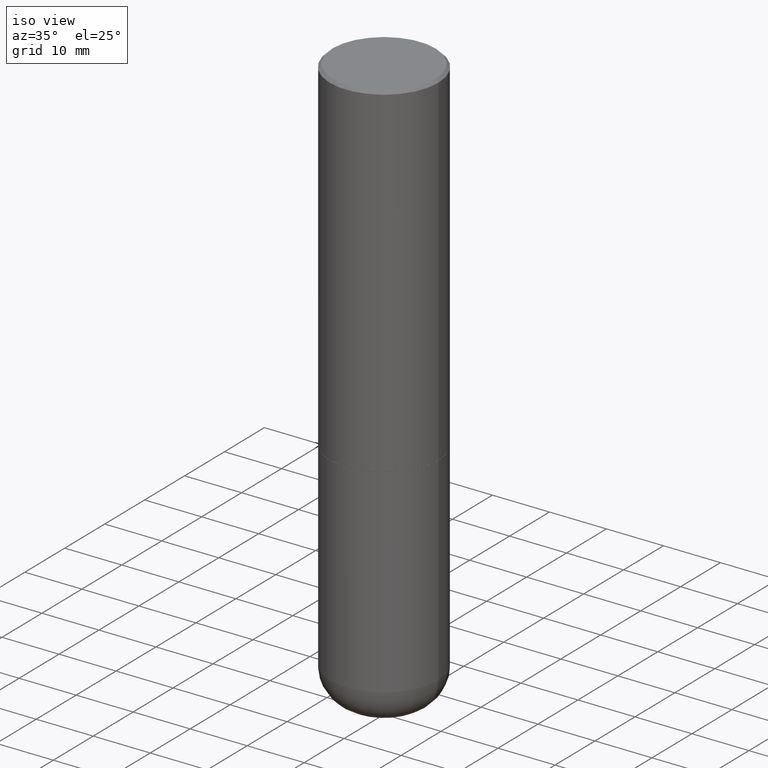
[diagram: clean part render]
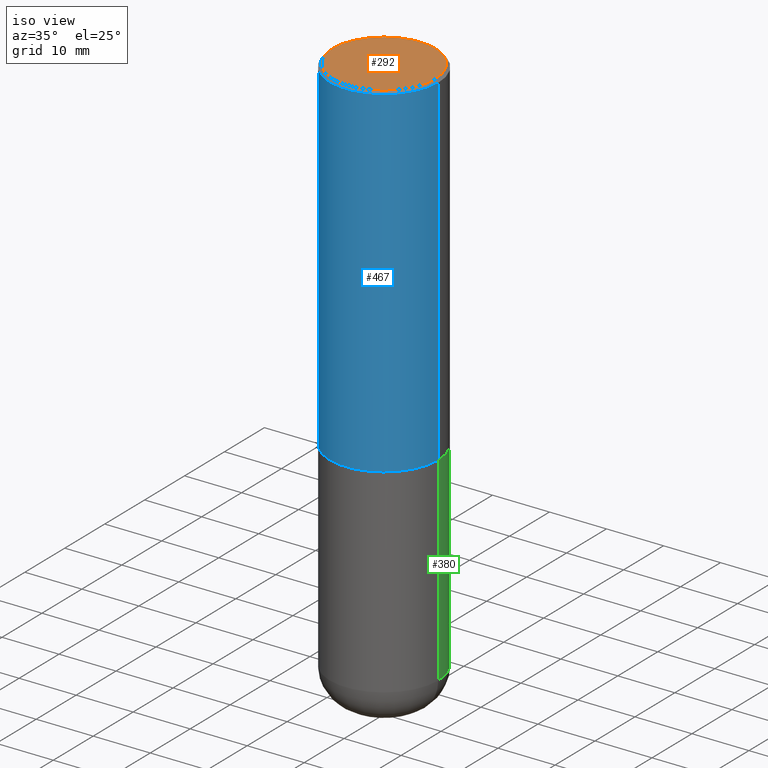
[diagram: same view with three faces highlighted in distinct colors, each labeled with its STEP entity id]
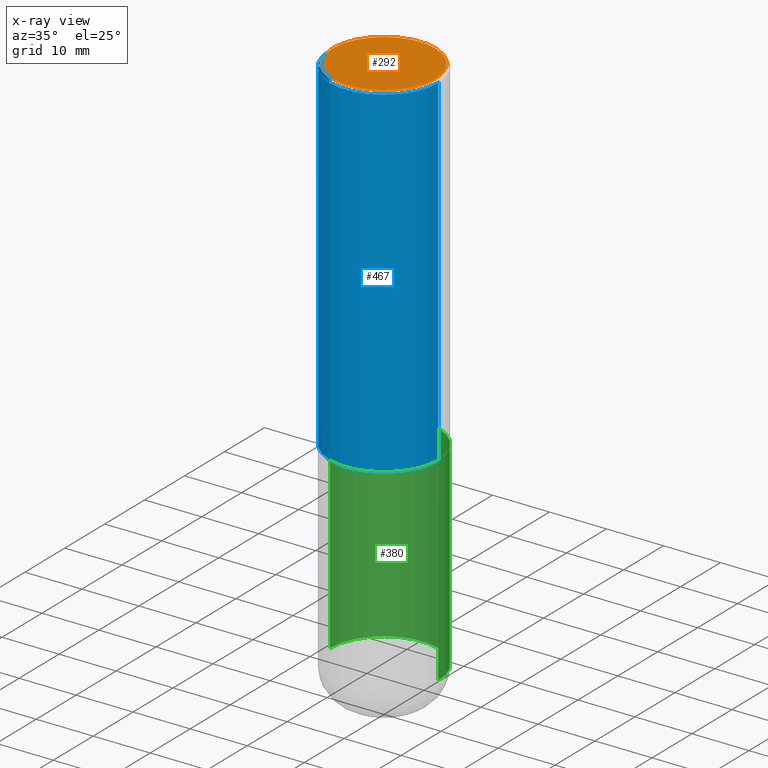
[diagram: x-ray of the same camera — body ghosted, the three highlighted faces saturated]
A machine part, iso view with three faces highlighted in distinct colors.
The next image is the same camera in x-ray (body ghosted, the three faces saturated) — at least one of them is partly hidden behind the body in this view.
Their STEP definitions:

[orange] entity #292 — the highlighted planar face has unit normal (0, -0, -1).
#22 = EDGE_CURVE ( 'NONE', #412, #43, #181, .T. ) ;
#38 = EDGE_LOOP ( 'NONE', ( #148, #105 ) ) ;
#43 = VERTEX_POINT ( 'NONE', #73 ) ;
#65 = DIRECTION ( 'NONE',  ( -2.445468806185136597E-29, 3.491481338843145583E-15, 1.000000000000000000 ) ) ;
#68 = AXIS2_PLACEMENT_3D ( 'NONE', #202, #65, #365 ) ;
#73 = CARTESIAN_POINT ( 'NONE',  ( -0.3549999999999989275, 2.513866563967048758E-15, 4.268512490082953109E-18 ) ) ;
#85 = DIRECTION ( 'NONE',  ( 1.000000000000000000, -6.982962677686266711E-15, 4.876231632512002757E-29 ) ) ;
#91 = DIRECTION ( 'NONE',  ( 2.438088387897960049E-29, -3.491481338843145188E-15, -1.000000000000000000 ) ) ;
#105 = ORIENTED_EDGE ( 'NONE', *, *, #22, .T. ) ;
#143 = AXIS2_PLACEMENT_3D ( 'NONE', #209, #91, #322 ) ;
#148 = ORIENTED_EDGE ( 'NONE', *, *, #326, .T. ) ;
#181 = CIRCLE ( 'NONE', #318, 0.3549999999999989275 ) ;
#202 = CARTESIAN_POINT ( 'NONE',  ( -1.043851414335219820E-46, 1.490343170380447200E-32, 4.268512490100411279E-18 ) ) ;
#209 = CARTESIAN_POINT ( 'NONE',  ( 2.478951750578617109E-15, 0.3549999999999989275, -1.237341619044262680E-15 ) ) ;
#276 = CARTESIAN_POINT ( 'NONE',  ( -1.043851414335219820E-46, 1.490343170380447200E-32, 4.268512490100411279E-18 ) ) ;
#292 = ADVANCED_FACE ( 'NONE', ( #440 ), #432, .F. ) ;
#318 = AXIS2_PLACEMENT_3D ( 'NONE', #276, #389, #85 ) ;
#322 = DIRECTION ( 'NONE',  ( -1.000000000000000000, 6.982962677686265922E-15, -4.876176775795935793E-29 ) ) ;
#326 = EDGE_CURVE ( 'NONE', #43, #412, #363, .T. ) ;
#342 = CARTESIAN_POINT ( 'NONE',  ( 0.3549999999999989275, -2.538996582575033948E-15, 4.268512490117958041E-18 ) ) ;
#363 = CIRCLE ( 'NONE', #68, 0.3549999999999989275 ) ;
#365 = DIRECTION ( 'NONE',  ( 1.000000000000000000, -6.982962677686266711E-15, 4.876231632512002757E-29 ) ) ;
#389 = DIRECTION ( 'NONE',  ( -2.445468806185136597E-29, 3.491481338843145583E-15, 1.000000000000000000 ) ) ;
#412 = VERTEX_POINT ( 'NONE', #342 ) ;
#432 = PLANE ( 'NONE',  #143 ) ;
#440 = FACE_OUTER_BOUND ( 'NONE', #38, .T. ) ;

[blue] entity #467 — the highlighted cylindrical surface (partial cylindrical patch) has radius 9.525 mm, axis along (-0, 0, 1).
#36 = VECTOR ( 'NONE', #252, 39.37007874015748143 ) ;
#50 = ORIENTED_EDGE ( 'NONE', *, *, #311, .F. ) ;
#56 = DIRECTION ( 'NONE',  ( -2.445468806185136877E-29, 3.491481338843145188E-15, 1.000000000000000000 ) ) ;
#64 = AXIS2_PLACEMENT_3D ( 'NONE', #388, #308, #460 ) ;
#88 = CARTESIAN_POINT ( 'NONE',  ( -0.3749999999999991673, 2.548781377355480407E-15, -0.02000000000000022246 ) ) ;
#100 = EDGE_CURVE ( 'NONE', #343, #301, #355, .T. ) ;
#124 = CARTESIAN_POINT ( 'NONE',  ( -0.3750000000000000555, -1.514767903494864183E-15, -2.373999999999999666 ) ) ;
#127 = CARTESIAN_POINT ( 'NONE',  ( -0.3749999999999995559, 2.664535259100372542E-15, -1.844600658845587356E-29 ) ) ;
#139 = DIRECTION ( 'NONE',  ( 1.000000000000000000, -6.982962677686266711E-15, 0.000000000000000000 ) ) ;
#144 = AXIS2_PLACEMENT_3D ( 'NONE', #390, #462, #423 ) ;
#147 = ORIENTED_EDGE ( 'NONE', *, *, #192, .T. ) ;
#178 = CARTESIAN_POINT ( 'NONE',  ( 4.890937612370327459E-31, -6.982962677686369262E-17, -0.02000000000000022246 ) ) ;
#192 = EDGE_CURVE ( 'NONE', #454, #301, #260, .T. ) ;
#211 = DIRECTION ( 'NONE',  ( -2.445468806185136597E-29, 3.491481338843145583E-15, 1.000000000000000000 ) ) ;
#213 = VECTOR ( 'NONE', #56, 39.37007874015748143 ) ;
#227 = CARTESIAN_POINT ( 'NONE',  ( 0.3750000000000000555, -1.090738770254597870E-14, -2.373999999999999666 ) ) ;
#252 = DIRECTION ( 'NONE',  ( -2.445468806185136877E-29, 3.491481338843145188E-15, 1.000000000000000000 ) ) ;
#260 = LINE ( 'NONE', #411, #36 ) ;
#287 = LINE ( 'NONE', #127, #213 ) ;
#301 = VERTEX_POINT ( 'NONE', #475 ) ;
#308 = DIRECTION ( 'NONE',  ( -2.445468806185136597E-29, 3.491481338843145583E-15, 1.000000000000000000 ) ) ;
#311 = EDGE_CURVE ( 'NONE', #490, #343, #287, .T. ) ;
#312 = CYLINDRICAL_SURFACE ( 'NONE', #144, 0.3749999999999995559 ) ;
#319 = ORIENTED_EDGE ( 'NONE', *, *, #100, .F. ) ;
#337 = ORIENTED_EDGE ( 'NONE', *, *, #459, .T. ) ;
#343 = VERTEX_POINT ( 'NONE', #88 ) ;
#355 = CIRCLE ( 'NONE', #376, 0.3749999999999991673 ) ;
#376 = AXIS2_PLACEMENT_3D ( 'NONE', #178, #211, #139 ) ;
#388 = CARTESIAN_POINT ( 'NONE',  ( 5.805542945883513814E-29, -8.288776698413627111E-15, -2.373999999999999666 ) ) ;
#390 = CARTESIAN_POINT ( 'NONE',  ( 0.000000000000000000, 0.000000000000000000, 0.000000000000000000 ) ) ;
#411 = CARTESIAN_POINT ( 'NONE',  ( 0.3749999999999995559, -2.618611004132346467E-15, 1.828566290923473680E-29 ) ) ;
#418 = FACE_OUTER_BOUND ( 'NONE', #487, .T. ) ;
#423 = DIRECTION ( 'NONE',  ( 1.000000000000000000, -6.982962677686265133E-15, 4.876176775795935793E-29 ) ) ;
#451 = CIRCLE ( 'NONE', #64, 0.3750000000000000555 ) ;
#454 = VERTEX_POINT ( 'NONE', #227 ) ;
#459 = EDGE_CURVE ( 'NONE', #490, #454, #451, .T. ) ;
#460 = DIRECTION ( 'NONE',  ( 1.000000000000000000, -6.982962677686266711E-15, 0.000000000000000000 ) ) ;
#462 = DIRECTION ( 'NONE',  ( -2.445468806185136597E-29, 3.491481338843145583E-15, 1.000000000000000000 ) ) ;
#467 = ADVANCED_FACE ( 'NONE', ( #418 ), #312, .T. ) ;
#475 = CARTESIAN_POINT ( 'NONE',  ( 0.3749999999999991673, -2.642516375941182112E-15, -0.02000000000000022246 ) ) ;
#487 = EDGE_LOOP ( 'NONE', ( #50, #337, #147, #319 ) ) ;
#490 = VERTEX_POINT ( 'NONE', #124 ) ;

[green] entity #380 — the highlighted cylindrical surface (partial cylindrical patch) has radius 9.525 mm, axis along (-0, 0, 1).
#7 = EDGE_LOOP ( 'NONE', ( #189, #295, #72, #87 ) ) ;
#13 = DIRECTION ( 'NONE',  ( 1.000000000000000000, -6.982962677686266711E-15, 0.000000000000000000 ) ) ;
#26 = EDGE_CURVE ( 'NONE', #414, #234, #168, .T. ) ;
#40 = VERTEX_POINT ( 'NONE', #445 ) ;
#72 = ORIENTED_EDGE ( 'NONE', *, *, #26, .F. ) ;
#83 = AXIS2_PLACEMENT_3D ( 'NONE', #173, #327, #483 ) ;
#87 = ORIENTED_EDGE ( 'NONE', *, *, #235, .F. ) ;
#107 = VECTOR ( 'NONE', #452, 39.37007874015748143 ) ;
#126 = CARTESIAN_POINT ( 'NONE',  ( 0.3749999999999999445, -2.618611004132349622E-15, 1.828566290923475642E-29 ) ) ;
#130 = AXIS2_PLACEMENT_3D ( 'NONE', #197, #354, #13 ) ;
#132 = CARTESIAN_POINT ( 'NONE',  ( 0.3749999999999999445, -1.571169926102186224E-14, -3.750009519233956645 ) ) ;
#134 = CARTESIAN_POINT ( 'NONE',  ( 9.170531302183962062E-29, -1.309308825688951538E-14, -3.750009519233956645 ) ) ;
#151 = AXIS2_PLACEMENT_3D ( 'NONE', #134, #245, #430 ) ;
#154 = EDGE_CURVE ( 'NONE', #40, #234, #447, .T. ) ;
#161 = CIRCLE ( 'NONE', #151, 0.3749999999999999445 ) ;
#168 = CIRCLE ( 'NONE', #130, 0.3750000000000000555 ) ;
#173 = CARTESIAN_POINT ( 'NONE',  ( 0.000000000000000000, 0.000000000000000000, 0.000000000000000000 ) ) ;
#189 = ORIENTED_EDGE ( 'NONE', *, *, #268, .T. ) ;
#197 = CARTESIAN_POINT ( 'NONE',  ( 5.807988414689699417E-29, -8.292268179752470118E-15, -2.375000000000000000 ) ) ;
#207 = CYLINDRICAL_SURFACE ( 'NONE', #83, 0.3749999999999999445 ) ;
#234 = VERTEX_POINT ( 'NONE', #402 ) ;
#235 = EDGE_CURVE ( 'NONE', #375, #414, #397, .T. ) ;
#238 = CARTESIAN_POINT ( 'NONE',  ( 0.3750000000000000555, -1.091087918388482013E-14, -2.375000000000000000 ) ) ;
#245 = DIRECTION ( 'NONE',  ( -2.445468806185136597E-29, 3.491481338843145583E-15, 1.000000000000000000 ) ) ;
#246 = FACE_OUTER_BOUND ( 'NONE', #7, .T. ) ;
#268 = EDGE_CURVE ( 'NONE', #375, #40, #161, .T. ) ;
#282 = VECTOR ( 'NONE', #367, 39.37007874015748143 ) ;
#295 = ORIENTED_EDGE ( 'NONE', *, *, #154, .T. ) ;
#327 = DIRECTION ( 'NONE',  ( -2.445468806185136597E-29, 3.491481338843145583E-15, 1.000000000000000000 ) ) ;
#354 = DIRECTION ( 'NONE',  ( -2.445468806185136597E-29, 3.491481338843145583E-15, 1.000000000000000000 ) ) ;
#367 = DIRECTION ( 'NONE',  ( -2.445468806185136877E-29, 3.491481338843145188E-15, 1.000000000000000000 ) ) ;
#375 = VERTEX_POINT ( 'NONE', #132 ) ;
#380 = ADVANCED_FACE ( 'NONE', ( #246 ), #207, .T. ) ;
#397 = LINE ( 'NONE', #126, #282 ) ;
#402 = CARTESIAN_POINT ( 'NONE',  ( -0.3750000000000000555, -8.028142959220617840E-15, -2.375000000000000000 ) ) ;
#408 = CARTESIAN_POINT ( 'NONE',  ( -0.3749999999999999445, 2.664535259100375303E-15, -1.844600658845589318E-29 ) ) ;
#414 = VERTEX_POINT ( 'NONE', #238 ) ;
#430 = DIRECTION ( 'NONE',  ( 1.000000000000000000, -6.982962677686263555E-15, 0.000000000000000000 ) ) ;
#445 = CARTESIAN_POINT ( 'NONE',  ( -0.3749999999999999445, -8.028142959220617840E-15, -3.750009519233956645 ) ) ;
#447 = LINE ( 'NONE', #408, #107 ) ;
#452 = DIRECTION ( 'NONE',  ( -2.445468806185136877E-29, 3.491481338843145188E-15, 1.000000000000000000 ) ) ;
#483 = DIRECTION ( 'NONE',  ( 1.000000000000000000, -6.982962677686266711E-15, 4.876176775795935793E-29 ) ) ;